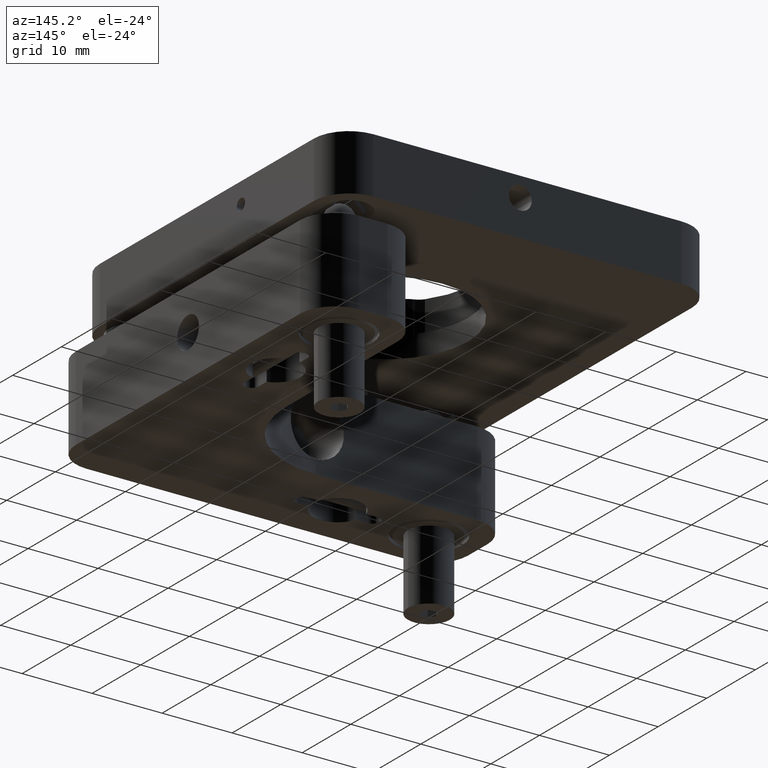
[diagram: clean part render]
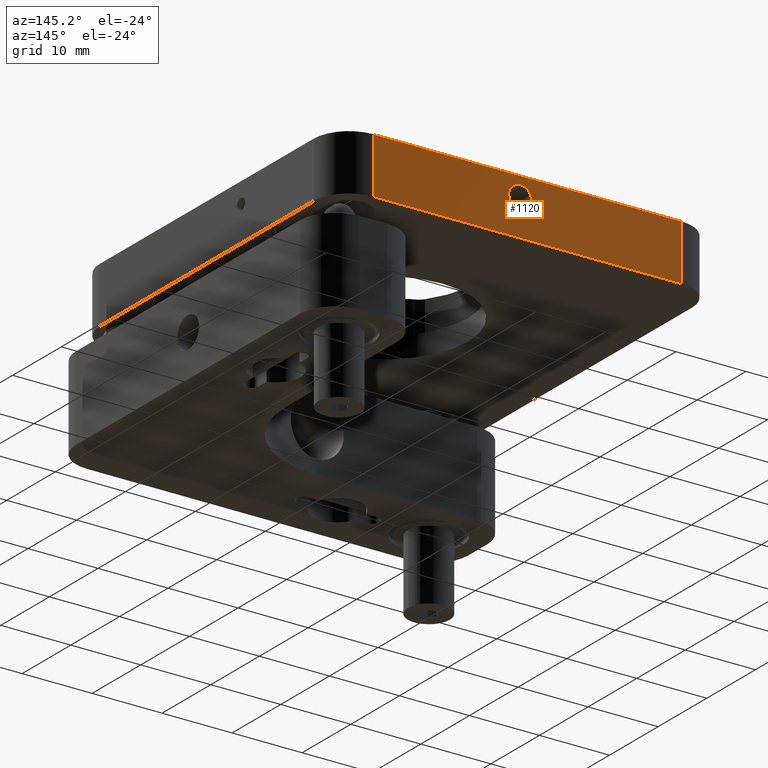
[diagram: same view with one face highlighted and labeled with its STEP entity id]
A machine part, auxiliary view. The second image highlights one B-rep face of the part: STEP entity #1120.
In plain terms, the highlighted planar face has unit normal (0, 1, 0).
Its self-contained STEP definition (entity closure, byte-faithful):
#44 = ORIENTED_EDGE ( 'NONE', *, *, #9265, .F. ) ;
#435 = VERTEX_POINT ( 'NONE', #4845 ) ;
#740 = DIRECTION ( 'NONE',  ( 2.220446049250312588E-16, 1.000000000000000000, 0.000000000000000000 ) ) ;
#928 = LINE ( 'NONE', #8255, #2445 ) ;
#956 = CARTESIAN_POINT ( 'NONE',  ( -22.99999999999996092, 28.00000000000000711, 8.000000000000000000 ) ) ;
#957 = ORIENTED_EDGE ( 'NONE', *, *, #11491, .T. ) ;
#1013 = DIRECTION ( 'NONE',  ( 3.008956720148861984E-16, 1.000000000000000000, 0.000000000000000000 ) ) ;
#1091 = ORIENTED_EDGE ( 'NONE', *, *, #11306, .F. ) ;
#1120 = ADVANCED_FACE ( 'NONE', ( #3189, #1154 ), #7443, .T. ) ;
#1154 = FACE_OUTER_BOUND ( 'NONE', #3809, .T. ) ;
#2374 = VECTOR ( 'NONE', #12766, 1000.000000000000000 ) ;
#2445 = VECTOR ( 'NONE', #12404, 1000.000000000000000 ) ;
#2775 = CARTESIAN_POINT ( 'NONE',  ( 1.015980229239362045E-14, 28.00000000000000000, 5.200000000000000178 ) ) ;
#3189 = FACE_BOUND ( 'NONE', #7672, .T. ) ;
#3359 = LINE ( 'NONE', #11700, #11721 ) ;
#3738 = DIRECTION ( 'NONE',  ( 2.220446049250312588E-16, 1.000000000000000000, 0.000000000000000000 ) ) ;
#3809 = EDGE_LOOP ( 'NONE', ( #44, #5853, #10913, #957 ) ) ;
#3869 = VERTEX_POINT ( 'NONE', #7727 ) ;
#3872 = CARTESIAN_POINT ( 'NONE',  ( 1.649999999999998579, 28.00000000000000000, 5.200000000000000178 ) ) ;
#3939 = VERTEX_POINT ( 'NONE', #5656 ) ;
#4282 = LINE ( 'NONE', #8525, #2374 ) ;
#4845 = CARTESIAN_POINT ( 'NONE',  ( 21.00000000000000711, 28.00000000000000000, 8.000000000000000000 ) ) ;
#5005 = DIRECTION ( 'NONE',  ( 1.000000000000000000, 0.000000000000000000, 0.000000000000000000 ) ) ;
#5283 = DIRECTION ( 'NONE',  ( 1.000000000000000000, -3.008956720148861984E-16, -0.000000000000000000 ) ) ;
#5548 = CIRCLE ( 'NONE', #13738, 1.649999999999988365 ) ;
#5656 = CARTESIAN_POINT ( 'NONE',  ( -1.649999999999978151, 28.00000000000000000, 5.200000000000000178 ) ) ;
#5853 = ORIENTED_EDGE ( 'NONE', *, *, #6814, .F. ) ;
#6082 = EDGE_CURVE ( 'NONE', #10877, #435, #928, .T. ) ;
#6814 = EDGE_CURVE ( 'NONE', #10877, #3869, #3359, .T. ) ;
#7386 = DIRECTION ( 'NONE',  ( 0.000000000000000000, 0.000000000000000000, -1.000000000000000000 ) ) ;
#7443 = PLANE ( 'NONE',  #11462 ) ;
#7478 = DIRECTION ( 'NONE',  ( 0.000000000000000000, 0.000000000000000000, -1.000000000000000000 ) ) ;
#7672 = EDGE_LOOP ( 'NONE', ( #8943, #1091 ) ) ;
#7727 = CARTESIAN_POINT ( 'NONE',  ( -22.99999999999996092, 28.00000000000000711, 0.000000000000000000 ) ) ;
#8255 = CARTESIAN_POINT ( 'NONE',  ( 21.00000000000000711, 27.99999999999999645, 8.000000000000000000 ) ) ;
#8525 = CARTESIAN_POINT ( 'NONE',  ( 21.00000000000000711, 27.99999999999999645, 0.000000000000000000 ) ) ;
#8601 = CARTESIAN_POINT ( 'NONE',  ( 21.00000000000000711, 27.99999999999999645, 8.000000000000000000 ) ) ;
#8742 = VERTEX_POINT ( 'NONE', #8930 ) ;
#8930 = CARTESIAN_POINT ( 'NONE',  ( 21.00000000000000711, 28.00000000000000000, 0.000000000000000000 ) ) ;
#8943 = ORIENTED_EDGE ( 'NONE', *, *, #13453, .F. ) ;
#9080 = DIRECTION ( 'NONE',  ( 1.000000000000000000, 0.000000000000000000, 0.000000000000000000 ) ) ;
#9265 = EDGE_CURVE ( 'NONE', #3869, #8742, #4282, .T. ) ;
#10850 = CIRCLE ( 'NONE', #13076, 1.649999999999988365 ) ;
#10877 = VERTEX_POINT ( 'NONE', #956 ) ;
#10913 = ORIENTED_EDGE ( 'NONE', *, *, #6082, .T. ) ;
#11240 = CARTESIAN_POINT ( 'NONE',  ( 1.015980229239362045E-14, 28.00000000000000000, 5.200000000000000178 ) ) ;
#11306 = EDGE_CURVE ( 'NONE', #3939, #13191, #5548, .T. ) ;
#11461 = LINE ( 'NONE', #12657, #13518 ) ;
#11462 = AXIS2_PLACEMENT_3D ( 'NONE', #8601, #1013, #5283 ) ;
#11491 = EDGE_CURVE ( 'NONE', #435, #8742, #11461, .T. ) ;
#11700 = CARTESIAN_POINT ( 'NONE',  ( -22.99999999999996092, 28.00000000000000711, 8.000000000000000000 ) ) ;
#11721 = VECTOR ( 'NONE', #7478, 1000.000000000000000 ) ;
#12404 = DIRECTION ( 'NONE',  ( 1.000000000000000000, -3.008956720148861984E-16, -0.000000000000000000 ) ) ;
#12657 = CARTESIAN_POINT ( 'NONE',  ( 21.00000000000000711, 28.00000000000000000, 8.000000000000000000 ) ) ;
#12766 = DIRECTION ( 'NONE',  ( 1.000000000000000000, -3.008956720148861984E-16, -0.000000000000000000 ) ) ;
#13076 = AXIS2_PLACEMENT_3D ( 'NONE', #11240, #3738, #9080 ) ;
#13191 = VERTEX_POINT ( 'NONE', #3872 ) ;
#13453 = EDGE_CURVE ( 'NONE', #13191, #3939, #10850, .T. ) ;
#13518 = VECTOR ( 'NONE', #7386, 1000.000000000000000 ) ;
#13738 = AXIS2_PLACEMENT_3D ( 'NONE', #2775, #740, #5005 ) ;